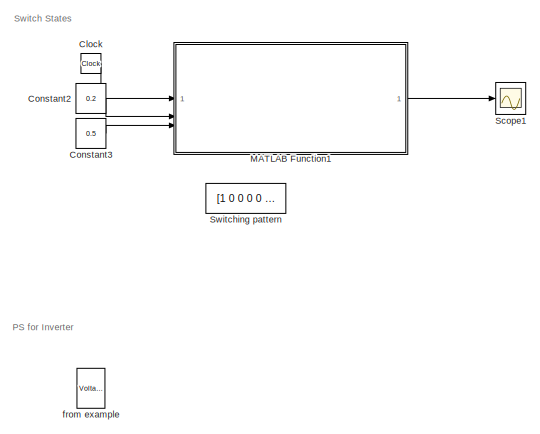
[diagram: root canvas - part 1/3, top left region]
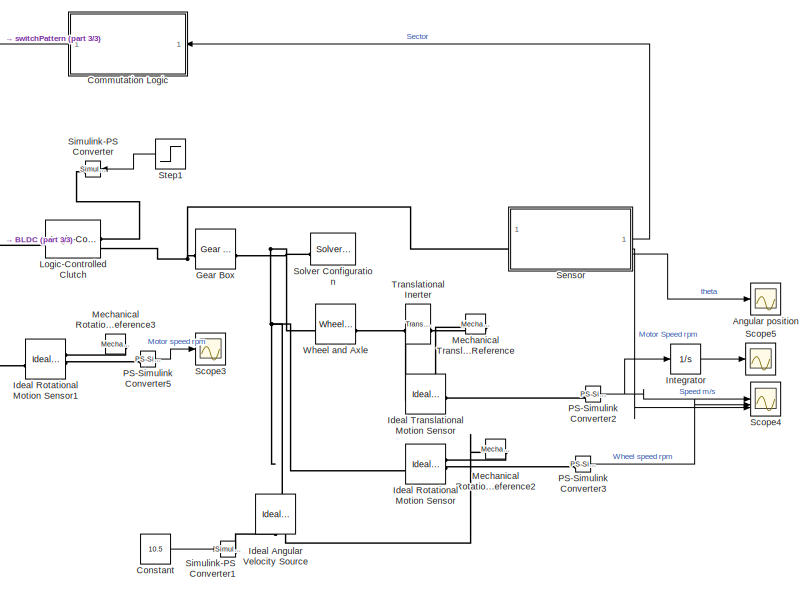
[diagram: root canvas - part 2/3, middle right region]
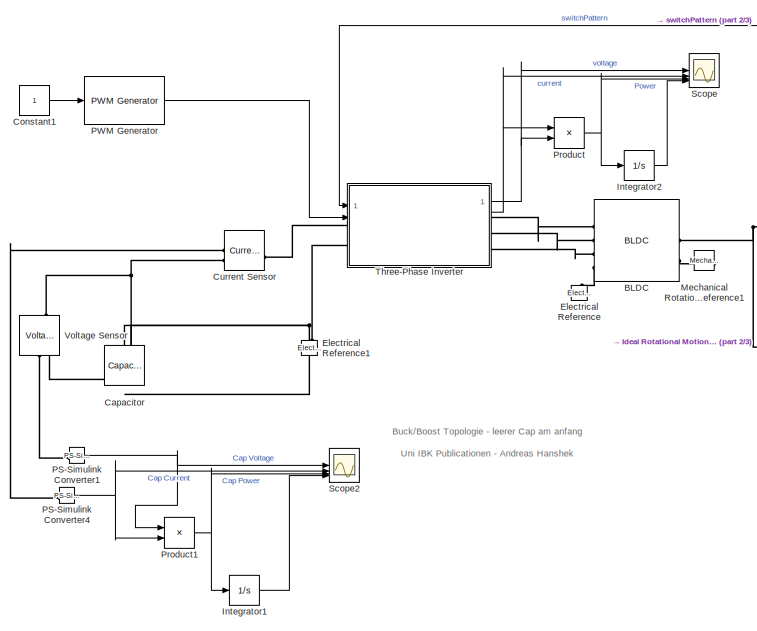
[diagram: root canvas - part 3/3, central region]
MODEL slx_5612a12646d6
KIND model
CONFIG AbsTol = auto
CONFIG EnableMultiTasking = off
CONFIG FixedStep = 2e-6
CONFIG InitFcn = warning('off','physmod:simscape:engine:core:advancer_errors:fallback_solve')
CONFIG MaxStep = auto
CONFIG MinStep = auto
CONFIG RelTol = 1e-3
CONFIG SampleTimeConstraint = Unconstrained
CONFIG SolverName = ode1
CONFIG StartTime = 0.0
CONFIG StopTime = 1.5
BLOCK [Scope] Angular position
  Floating = off
  NumInputPorts = 1
  ScopeSpecificationString = Simulink.scopes.TimeScopeBlockCfg('CurrentConfiguration', extmgr.ConfigurationSet(extmgr.Configuration('Core','General UI',true),extmgr.Configuration('Core','Source UI',true),extmgr.Configuration('Sources','WiredSimulink',true,'DataLoggingVariableName','thetaSim','DataLoggingSaveFormat','StructureWithTime'),extmgr.Configuration('Visuals','Time Domain',true,'SerializedDisplays',{struct('MinYLimReal...<+1484ch>
BLOCK [Reference] BLDC  REF=ee_lib/Electromechanical/Permanent Magnet/BLDC
  SourceBlock = ee_lib/Electromechanical/Permanent Magnet/BLDC
  SourceType = BLDC
BLOCK [Reference] Capacitor  REF=fl_lib/Electrical/Electrical Elements/Capacitor
  NameLocation = left
  SourceBlock = fl_lib/Electrical/Electrical Elements/Capacitor
  SourceType = Capacitor
BLOCK [Clock] Clock
  Commented = on
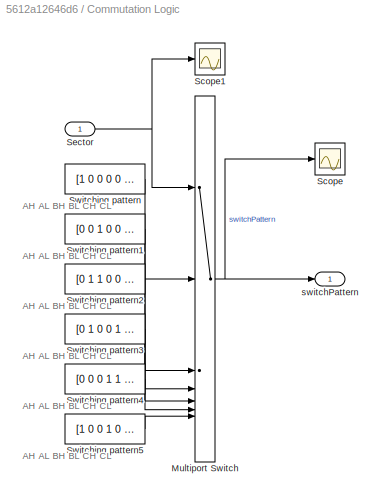
BLOCK [SubSystem] Commutation Logic
BLOCK [MultiPortSwitch] Commutation Logic/Multiport Switch
  InputSameDT = off
  Inputs = 6
  SaturateOnIntegerOverflow = off
BLOCK [Scope] Commutation Logic/Scope
  Floating = off
  NumInputPorts = 1
  ScopeSpecificationString = Simulink.scopes.TimeScopeBlockCfg('CurrentConfiguration', extmgr.ConfigurationSet(extmgr.Configuration('Core','General UI',true),extmgr.Configuration('Core','Source UI',true),extmgr.Configuration('Sources','WiredSimulink',true,'DataLoggingVariableName','switchPattern','DataLogging',true,'DataLoggingSaveFormat','StructureWithTime'),extmgr.Configuration('Visuals','Time Domain',true,'SerializedDispla...<+1570ch>
BLOCK [Scope] Commutation Logic/Scope1
  Floating = off
  NumInputPorts = 1
  ScopeSpecificationString = Simulink.scopes.TimeScopeBlockCfg('CurrentConfiguration', extmgr.ConfigurationSet(extmgr.Configuration('Core','General UI',true),extmgr.Configuration('Core','Source UI',true),extmgr.Configuration('Sources','WiredSimulink',true,'DataLoggingVariableName','ScopeData2','DataLogging',true,'DataLoggingSaveFormat','StructureWithTime'),extmgr.Configuration('Visuals','Time Domain',true,'SerializedDisplays'...<+1462ch>
BLOCK [Inport] Commutation Logic/Sector
BLOCK [Constant] Commutation Logic/Switching pattern
  Value = [1 0 0 0 0 1]
BLOCK [Constant] Commutation Logic/Switching pattern1
  Value = [0 0 1 0 0 1]
BLOCK [Constant] Commutation Logic/Switching pattern2
  Value = [0 1 1 0 0 0]
BLOCK [Constant] Commutation Logic/Switching pattern3
  Value = [0 1 0 0 1 0]
BLOCK [Constant] Commutation Logic/Switching pattern4
  Value = [0 0 0 1 1 0]
BLOCK [Constant] Commutation Logic/Switching pattern5
  Value = [1 0 0 1 0 0]
BLOCK [Outport] Commutation Logic/switchPattern
BLOCK [Constant] Constant
  Value = 10.5
BLOCK [Constant] Constant1
BLOCK [Constant] Constant2
  Commented = on
  Value = 0.2
BLOCK [Constant] Constant3
  Commented = on
  Value = 0.5
BLOCK [Reference] Current Sensor  REF=fl_lib/Electrical/Electrical Sensors/Current Sensor
  SourceBlock = fl_lib/Electrical/Electrical Sensors/Current Sensor
  SourceType = Current Sensor
BLOCK [Reference] Electrical Reference  REF=fl_lib/Electrical/Electrical Elements/Electrical Reference
  NameLocation = right
  SourceBlock = fl_lib/Electrical/Electrical Elements/Electrical Reference
  SourceType = Electrical Reference
BLOCK [Reference] Electrical Reference1  REF=fl_lib/Electrical/Electrical Elements/Electrical Reference
  NameLocation = right
  SourceBlock = fl_lib/Electrical/Electrical Elements/Electrical Reference
  SourceType = Electrical Reference
BLOCK [Reference] Gear Box  REF=fl_lib/Mechanical/Mechanisms/Gear Box
  SourceBlock = fl_lib/Mechanical/Mechanisms/Gear Box
  SourceType = Gear Box
BLOCK [Reference] Ideal Angular Velocity Source  REF=fl_lib/Mechanical/Mechanical Sources/Ideal Angular
Velocity Source
  NameLocation = right
  SourceBlock = fl_lib/Mechanical/Mechanical Sources/Ideal Angular\nVelocity Source
  SourceType = Ideal Angular\nVelocity Source
BLOCK [Reference] Ideal Rotational Motion Sensor  REF=fl_lib/Mechanical/Mechanical Sensors/Ideal Rotational
Motion Sensor
  SourceBlock = fl_lib/Mechanical/Mechanical Sensors/Ideal Rotational\nMotion Sensor
  SourceType = Ideal Rotational\nMotion Sensor
BLOCK [Reference] Ideal Rotational Motion Sensor1  REF=fl_lib/Mechanical/Mechanical Sensors/Ideal Rotational
Motion Sensor
  SourceBlock = fl_lib/Mechanical/Mechanical Sensors/Ideal Rotational\nMotion Sensor
  SourceType = Ideal Rotational\nMotion Sensor
BLOCK [Reference] Ideal Translational Motion Sensor  REF=fl_lib/Mechanical/Mechanical Sensors/Ideal Translational
Motion Sensor
  Commented = on
  SourceBlock = fl_lib/Mechanical/Mechanical Sensors/Ideal Translational\nMotion Sensor
  SourceType = Ideal Translational\nMotion Sensor
BLOCK [Integrator] Integrator
BLOCK [Integrator] Integrator1
BLOCK [Integrator] Integrator2
BLOCK [Reference] Logic-Controlled Clutch  REF=sdl_lib/Clutches/Logic-Controlled
Clutch
  SourceBlock = sdl_lib/Clutches/Logic-Controlled\nClutch
  SourceType = Logic-Controlled\nClutch
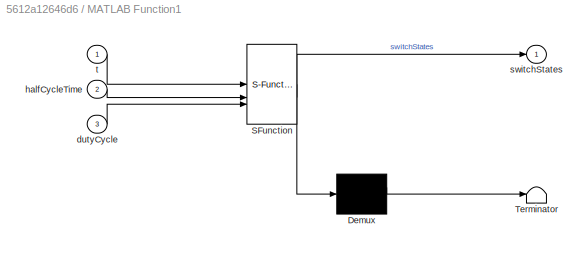
BLOCK [SubSystem] MATLAB Function1
  Commented = on
  ErrorFcn = Stateflow.Translate.translate
  PermitHierarchicalResolution = ExplicitOnly
  SFBlockType = MATLAB Function
  TreatAsAtomicUnit = on
BLOCK [Demux] MATLAB Function1/ Demux 
  Outputs = 1
BLOCK [S-Function] MATLAB Function1/ SFunction 
  EnableBusSupport = on
  FunctionName = sf_sfun
  PortCounts = [3 2]
  SFcnIsStateOwnerBlock = off
  SFunctionDeploymentMode = off
  Tag = Stateflow S-Function 1
BLOCK [Terminator] MATLAB Function1/ Terminator 
BLOCK [Inport] MATLAB Function1/dutyCycle
  Port = 3
BLOCK [Inport] MATLAB Function1/halfCycleTime
  Port = 2
BLOCK [Outport] MATLAB Function1/switchStates
BLOCK [Inport] MATLAB Function1/t
BLOCK [Reference] Mechanical Rotational Reference1  REF=fl_lib/Mechanical/Rotational Elements/Mechanical
Rotational Reference
  NameLocation = top
  SourceBlock = fl_lib/Mechanical/Rotational Elements/Mechanical\nRotational Reference
  SourceType = Mechanical\nRotational Reference
BLOCK [Reference] Mechanical Rotational Reference2  REF=fl_lib/Mechanical/Rotational Elements/Mechanical
Rotational Reference
  NameLocation = top
  SourceBlock = fl_lib/Mechanical/Rotational Elements/Mechanical\nRotational Reference
  SourceType = Mechanical\nRotational Reference
BLOCK [Reference] Mechanical Rotational Reference3  REF=fl_lib/Mechanical/Rotational Elements/Mechanical
Rotational Reference
  NameLocation = top
  SourceBlock = fl_lib/Mechanical/Rotational Elements/Mechanical\nRotational Reference
  SourceType = Mechanical\nRotational Reference
BLOCK [Reference] Mechanical Translational Reference  REF=fl_lib/Mechanical/Translational
Elements/Mechanical
Translational
Reference
  Commented = on
  NameLocation = top
  SourceBlock = fl_lib/Mechanical/Translational\nElements/Mechanical\nTranslational\nReference
  SourceType = Mechanical\nTranslational\nReference
BLOCK [Reference] PS-Simulink Converter1  REF=nesl_utility/PS-Simulink
Converter
  SourceBlock = nesl_utility/PS-Simulink\nConverter
  SourceType = PS-Simulink\nConverter
BLOCK [Reference] PS-Simulink Converter2  REF=nesl_utility/PS-Simulink
Converter
  SourceBlock = nesl_utility/PS-Simulink\nConverter
  SourceType = PS-Simulink\nConverter
BLOCK [Reference] PS-Simulink Converter3  REF=nesl_utility/PS-Simulink
Converter
  SourceBlock = nesl_utility/PS-Simulink\nConverter
  SourceType = PS-Simulink\nConverter
BLOCK [Reference] PS-Simulink Converter4  REF=nesl_utility/PS-Simulink
Converter
  SourceBlock = nesl_utility/PS-Simulink\nConverter
  SourceType = PS-Simulink\nConverter
BLOCK [Reference] PS-Simulink Converter5  REF=nesl_utility/PS-Simulink
Converter
  SourceBlock = nesl_utility/PS-Simulink\nConverter
  SourceType = PS-Simulink\nConverter
BLOCK [Reference] PWM Generator  REF=eePwmGenerator/PWM Generator
  LibrarySourceBlock = ee_sl_lib/Pulse Width\nModulation/PWM Generator
  SourceBlock = eePwmGenerator/PWM Generator
  SourceType = PWM Generator
BLOCK [Product] Product
BLOCK [Product] Product1
BLOCK [Scope] Scope
  Floating = off
  NumInputPorts = 4
  ScopeSpecificationString = Simulink.scopes.TimeScopeBlockCfg('CurrentConfiguration', extmgr.ConfigurationSet(extmgr.Configuration('Core','General UI',true),extmgr.Configuration('Core','Source UI',true),extmgr.Configuration('Sources','WiredSimulink',true,'DataLoggingVariableName','ScopeData1'),extmgr.Configuration('Visuals','Time Domain',true,'SerializedDisplays',{struct('MinYLimReal','-9.56414','MaxYLimReal','30.23803','YLa...<+3276ch>
BLOCK [Scope] Scope1
  Commented = on
  Floating = off
  NumInputPorts = 1
  ScopeSpecificationString = Simulink.scopes.TimeScopeBlockCfg('CurrentConfiguration', extmgr.ConfigurationSet(extmgr.Configuration('Core','General UI',true),extmgr.Configuration('Core','Source UI',true),extmgr.Configuration('Sources','WiredSimulink',true,'DataLoggingVariableName','ScopeData2'),extmgr.Configuration('Visuals','Time Domain',true,'SerializedDisplays',{struct('MinYLimReal','-0.125','MaxYLimReal','1.125','YLabelRe...<+1503ch>
BLOCK [Scope] Scope2
  Floating = off
  NumInputPorts = 4
  ScopeSpecificationString = Simulink.scopes.TimeScopeBlockCfg('CurrentConfiguration', extmgr.ConfigurationSet(extmgr.Configuration('Core','General UI',true),extmgr.Configuration('Core','Source UI',true),extmgr.Configuration('Sources','WiredSimulink',true,'DataLoggingVariableName','ScopeData3'),extmgr.Configuration('Visuals','Time Domain',true,'SerializedDisplays',{struct('MinYLimReal','-2.75516','MaxYLimReal','24.79644','YLa...<+3134ch>
BLOCK [Scope] Scope3
  Floating = off
  NumInputPorts = 1
  ScopeSpecificationString = Simulink.scopes.TimeScopeBlockCfg('CurrentConfiguration', extmgr.ConfigurationSet(extmgr.Configuration('Core','General UI',true),extmgr.Configuration('Core','Source UI',true),extmgr.Configuration('Sources','WiredSimulink',true,'DataLoggingVariableName','ScopeData1'),extmgr.Configuration('Visuals','Time Domain',true,'SerializedDisplays',{struct('MinYLimReal','-73.23177','MaxYLimReal','659.08589','Y...<+1430ch>
BLOCK [Scope] Scope4
  Floating = off
  NumInputPorts = 3
  ScopeSpecificationString = Simulink.scopes.TimeScopeBlockCfg('CurrentConfiguration', extmgr.ConfigurationSet(extmgr.Configuration('Core','General UI',true),extmgr.Configuration('Core','Source UI',true),extmgr.Configuration('Sources','WiredSimulink',true,'DataLoggingVariableName','ScopeData2'),extmgr.Configuration('Visuals','Time Domain',true,'SerializedDisplays',{struct('MinYLimReal','-0.99982','MaxYLimReal','8.99998','YLab...<+3184ch>
BLOCK [Scope] Scope5
  Floating = off
  NumInputPorts = 1
  ScopeSpecificationString = Simulink.scopes.TimeScopeBlockCfg('CurrentConfiguration', extmgr.ConfigurationSet(extmgr.Configuration('Core','General UI',true),extmgr.Configuration('Core','Source UI',true),extmgr.Configuration('Sources','WiredSimulink',true,'DataLoggingVariableName','ScopeData2'),extmgr.Configuration('Visuals','Time Domain',true,'SerializedDisplays',{struct('MinYLimReal','-0.66963','MaxYLimReal','6.02664','YLab...<+1369ch>
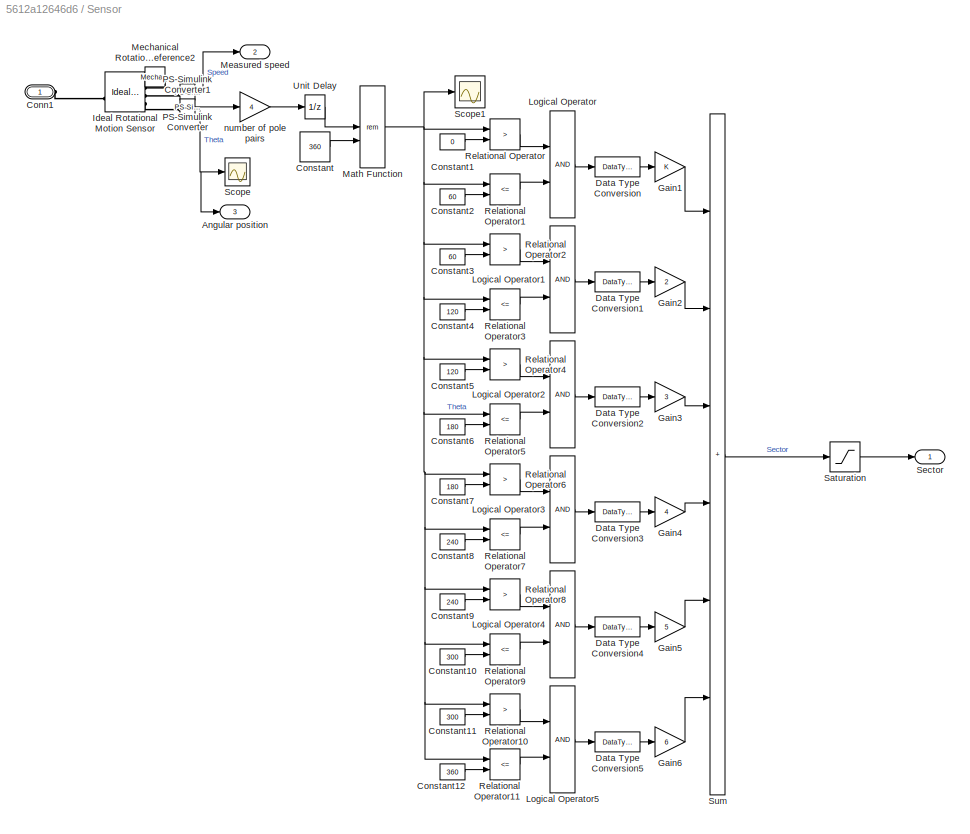
BLOCK [SubSystem] Sensor
BLOCK [Outport] Sensor/Angular position
  Port = 3
BLOCK [PMIOPort] Sensor/Conn1
  Side = Left
BLOCK [Constant] Sensor/Constant
  Value = 360
BLOCK [Constant] Sensor/Constant1
  Value = 0
BLOCK [Constant] Sensor/Constant10
  Value = 300
BLOCK [Constant] Sensor/Constant11
  Value = 300
BLOCK [Constant] Sensor/Constant12
  Value = 360
BLOCK [Constant] Sensor/Constant2
  Value = 60
BLOCK [Constant] Sensor/Constant3
  Value = 60
BLOCK [Constant] Sensor/Constant4
  Value = 120
BLOCK [Constant] Sensor/Constant5
  Value = 120
BLOCK [Constant] Sensor/Constant6
  Value = 180
BLOCK [Constant] Sensor/Constant7
  Value = 180
BLOCK [Constant] Sensor/Constant8
  Value = 240
BLOCK [Constant] Sensor/Constant9
  Value = 240
BLOCK [DataTypeConversion] Sensor/Data Type Conversion
  RndMeth = Floor
  SaturateOnIntegerOverflow = off
BLOCK [DataTypeConversion] Sensor/Data Type Conversion1
  RndMeth = Floor
  SaturateOnIntegerOverflow = off
BLOCK [DataTypeConversion] Sensor/Data Type Conversion2
  RndMeth = Floor
  SaturateOnIntegerOverflow = off
BLOCK [DataTypeConversion] Sensor/Data Type Conversion3
  RndMeth = Floor
  SaturateOnIntegerOverflow = off
BLOCK [DataTypeConversion] Sensor/Data Type Conversion4
  RndMeth = Floor
  SaturateOnIntegerOverflow = off
BLOCK [DataTypeConversion] Sensor/Data Type Conversion5
  RndMeth = Floor
  SaturateOnIntegerOverflow = off
BLOCK [Gain] Sensor/Gain1
BLOCK [Gain] Sensor/Gain2
  Gain = 2
BLOCK [Gain] Sensor/Gain3
  Gain = 3
BLOCK [Gain] Sensor/Gain4
  Gain = 4
BLOCK [Gain] Sensor/Gain5
  Gain = 5
BLOCK [Gain] Sensor/Gain6
  Gain = 6
BLOCK [Reference] Sensor/Ideal Rotational Motion Sensor  REF=fl_lib/Mechanical/Mechanical Sensors/Ideal Rotational
Motion Sensor
  SourceBlock = fl_lib/Mechanical/Mechanical Sensors/Ideal Rotational\nMotion Sensor
  SourceType = Ideal Rotational\nMotion Sensor
BLOCK [Logic] Sensor/Logical Operator
  AllPortsSameDT = off
  OutDataTypeStr = boolean
BLOCK [Logic] Sensor/Logical Operator1
  AllPortsSameDT = off
  OutDataTypeStr = boolean
BLOCK [Logic] Sensor/Logical Operator2
  AllPortsSameDT = off
  OutDataTypeStr = boolean
BLOCK [Logic] Sensor/Logical Operator3
  AllPortsSameDT = off
  OutDataTypeStr = boolean
BLOCK [Logic] Sensor/Logical Operator4
  AllPortsSameDT = off
  OutDataTypeStr = boolean
BLOCK [Logic] Sensor/Logical Operator5
  AllPortsSameDT = off
  OutDataTypeStr = boolean
BLOCK [Math] Sensor/Math Function
  Operator = rem
BLOCK [Outport] Sensor/Measured speed
  Port = 2
BLOCK [Reference] Sensor/Mechanical Rotational Reference2  REF=fl_lib/Mechanical/Rotational Elements/Mechanical
Rotational Reference
  NameLocation = top
  SourceBlock = fl_lib/Mechanical/Rotational Elements/Mechanical\nRotational Reference
  SourceType = Mechanical\nRotational Reference
BLOCK [Reference] Sensor/PS-Simulink Converter  REF=nesl_utility/PS-Simulink
Converter
  SourceBlock = nesl_utility/PS-Simulink\nConverter
  SourceType = PS-Simulink\nConverter
BLOCK [Reference] Sensor/PS-Simulink Converter1  REF=nesl_utility/PS-Simulink
Converter
  SourceBlock = nesl_utility/PS-Simulink\nConverter
  SourceType = PS-Simulink\nConverter
BLOCK [RelationalOperator] Sensor/Relational Operator
  InputSameDT = off
  Operator = >
  OutDataTypeStr = boolean
  RndMeth = Simplest
BLOCK [RelationalOperator] Sensor/Relational Operator1
  InputSameDT = off
  Operator = <=
  OutDataTypeStr = boolean
  RndMeth = Simplest
BLOCK [RelationalOperator] Sensor/Relational Operator10
  InputSameDT = off
  Operator = >
  OutDataTypeStr = boolean
  RndMeth = Simplest
BLOCK [RelationalOperator] Sensor/Relational Operator11
  InputSameDT = off
  Operator = <=
  OutDataTypeStr = boolean
  RndMeth = Simplest
BLOCK [RelationalOperator] Sensor/Relational Operator2
  InputSameDT = off
  Operator = >
  OutDataTypeStr = boolean
  RndMeth = Simplest
BLOCK [RelationalOperator] Sensor/Relational Operator3
  InputSameDT = off
  Operator = <=
  OutDataTypeStr = boolean
  RndMeth = Simplest
BLOCK [RelationalOperator] Sensor/Relational Operator4
  InputSameDT = off
  Operator = >
  OutDataTypeStr = boolean
  RndMeth = Simplest
BLOCK [RelationalOperator] Sensor/Relational Operator5
  InputSameDT = off
  Operator = <=
  OutDataTypeStr = boolean
  RndMeth = Simplest
BLOCK [RelationalOperator] Sensor/Relational Operator6
  InputSameDT = off
  Operator = >
  OutDataTypeStr = boolean
  RndMeth = Simplest
BLOCK [RelationalOperator] Sensor/Relational Operator7
  InputSameDT = off
  Operator = <=
  OutDataTypeStr = boolean
  RndMeth = Simplest
BLOCK [RelationalOperator] Sensor/Relational Operator8
  InputSameDT = off
  Operator = >
  OutDataTypeStr = boolean
  RndMeth = Simplest
BLOCK [RelationalOperator] Sensor/Relational Operator9
  InputSameDT = off
  Operator = <=
  OutDataTypeStr = boolean
  RndMeth = Simplest
BLOCK [Saturate] Sensor/Saturation
  LowerLimit = 1
  UpperLimit = 6
BLOCK [Scope] Sensor/Scope
  Floating = off
  NumInputPorts = 1
  ScopeSpecificationString = Simulink.scopes.TimeScopeBlockCfg('CurrentConfiguration', extmgr.ConfigurationSet(extmgr.Configuration('Core','General UI',true),extmgr.Configuration('Core','Source UI',true),extmgr.Configuration('Sources','WiredSimulink',true,'DataLoggingVariableName','thetaSim','DataLogging',true,'DataLoggingSaveFormat','StructureWithTime'),extmgr.Configuration('Visuals','Time Domain',true,'SerializedDisplays',{...<+1468ch>
BLOCK [Scope] Sensor/Scope1
  Floating = off
  NumInputPorts = 1
  ScopeSpecificationString = Simulink.scopes.TimeScopeBlockCfg('CurrentConfiguration', extmgr.ConfigurationSet(extmgr.Configuration('Core','General UI',true),extmgr.Configuration('Core','Source UI',true),extmgr.Configuration('Sources','WiredSimulink',true,'DataLoggingVariableName','ScopeData1'),extmgr.Configuration('Visuals','Time Domain',true,'SerializedDisplays',{struct('MinYLimReal','-44.99999','MaxYLimReal','404.99993','Y...<+1412ch>
BLOCK [Outport] Sensor/Sector
BLOCK [Sum] Sensor/Sum
  IconShape = rectangular
  Inputs = ++++++
BLOCK [UnitDelay] Sensor/Unit Delay
  HasFrameUpgradeWarning = on
  SampleTime = 2e-5
BLOCK [Gain] Sensor/number of pole pairs
  Gain = 4
BLOCK [Reference] Simulink-PS Converter  REF=nesl_utility/Simulink-PS
Converter
  SourceBlock = nesl_utility/Simulink-PS\nConverter
  SourceType = Simulink-PS\nConverter
BLOCK [Reference] Simulink-PS Converter1  REF=nesl_utility/Simulink-PS
Converter
  SourceBlock = nesl_utility/Simulink-PS\nConverter
  SourceType = Simulink-PS\nConverter
BLOCK [Reference] Solver Configuration  REF=nesl_utility/Solver
Configuration
  SourceBlock = nesl_utility/Solver\nConfiguration
  SourceType = Solver\nConfiguration
BLOCK [Step] Step1
  SampleTime = 0
  Time = 0.1
BLOCK [Constant] Switching pattern
  Commented = on
  Value = [1 0 0 0 0 1]
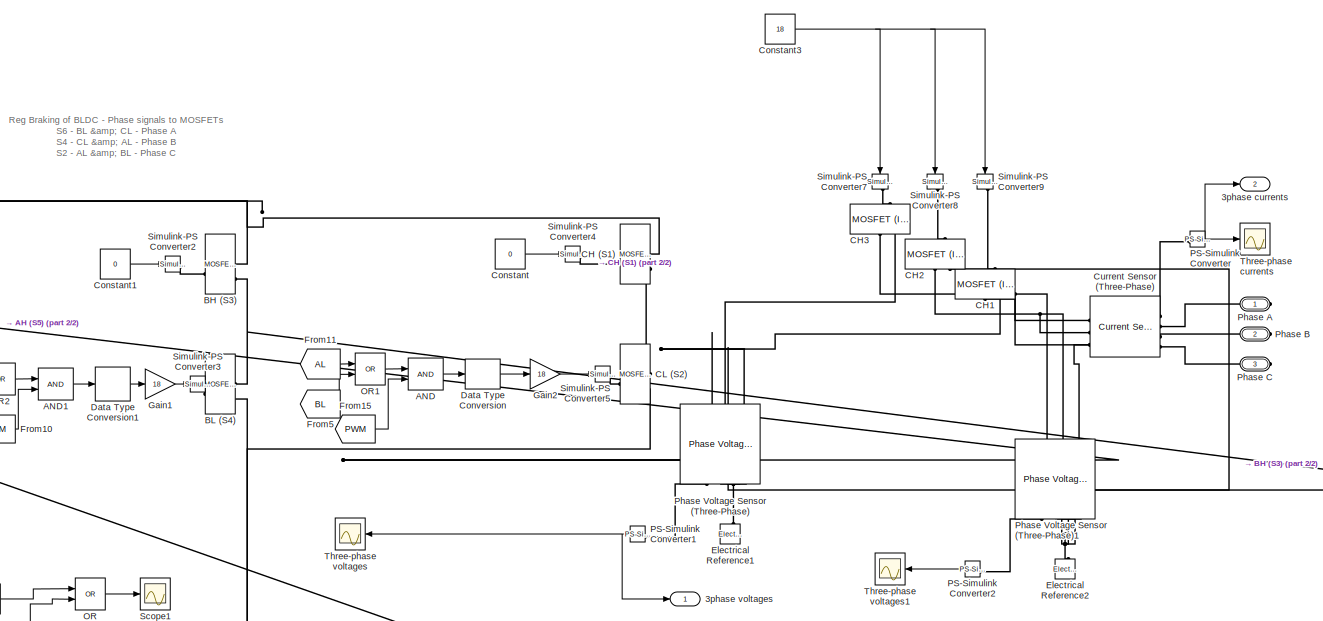
[diagram: Three-Phase Inverter - part 1/2, center side, full height]
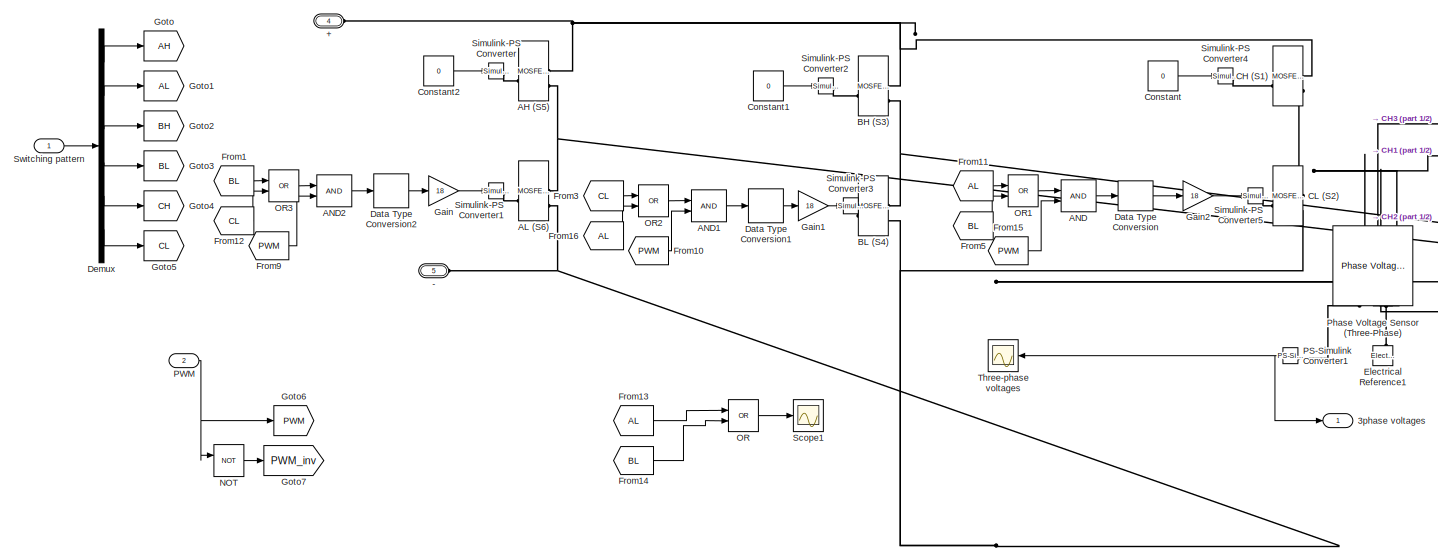
[diagram: Three-Phase Inverter - part 2/2, central region]
BLOCK [SubSystem] Three-Phase Inverter
BLOCK [PMIOPort] Three-Phase Inverter/+
  Port = 4
  Side = Left
BLOCK [PMIOPort] Three-Phase Inverter/-
  Port = 5
  Side = Left
BLOCK [Outport] Three-Phase Inverter/3phase currents
  Port = 2
BLOCK [Outport] Three-Phase Inverter/3phase voltages
BLOCK [Reference] Three-Phase Inverter/AH (S5)  REF=ee_lib/Semiconductors &
Converters/MOSFET
(Ideal,
Switching)
  AttributesFormatString = Infineon:IMZA120R007M1H
  SourceBlock = ee_lib/Semiconductors &\nConverters/MOSFET\n(Ideal,\nSwitching)
  SourceType = MOSFET\n(Ideal,\nSwitching)
  Tag = {'toolbox/physmod/elec/library/m/ee_lib_parts';'Semiconductors_and_Converters/MOSFET__Ideal__Switching_/Infineon/IMZA120R007M1H.xml'}
BLOCK [Reference] Three-Phase Inverter/AL (S6)  REF=ee_lib/Semiconductors &
Converters/MOSFET
(Ideal,
Switching)
  AttributesFormatString = Infineon:IMZA120R007M1H
  SourceBlock = ee_lib/Semiconductors &\nConverters/MOSFET\n(Ideal,\nSwitching)
  SourceType = MOSFET\n(Ideal,\nSwitching)
  Tag = {'toolbox/physmod/elec/library/m/ee_lib_parts';'Semiconductors_and_Converters/MOSFET__Ideal__Switching_/Infineon/IMZA120R007M1H.xml'}
BLOCK [Logic] Three-Phase Inverter/AND
  AllPortsSameDT = off
  IconShape = distinctive
  OutDataTypeStr = boolean
BLOCK [Logic] Three-Phase Inverter/AND1
  AllPortsSameDT = off
  IconShape = distinctive
  OutDataTypeStr = boolean
BLOCK [Logic] Three-Phase Inverter/AND2
  AllPortsSameDT = off
  IconShape = distinctive
  OutDataTypeStr = boolean
BLOCK [Reference] Three-Phase Inverter/BH (S3)  REF=ee_lib/Semiconductors &
Converters/MOSFET
(Ideal,
Switching)
  AttributesFormatString = Infineon:IMZA120R007M1H
  SourceBlock = ee_lib/Semiconductors &\nConverters/MOSFET\n(Ideal,\nSwitching)
  SourceType = MOSFET\n(Ideal,\nSwitching)
  Tag = {'toolbox/physmod/elec/library/m/ee_lib_parts';'Semiconductors_and_Converters/MOSFET__Ideal__Switching_/Infineon/IMZA120R007M1H.xml'}
BLOCK [Reference] Three-Phase Inverter/BL (S4)  REF=ee_lib/Semiconductors &
Converters/MOSFET
(Ideal,
Switching)
  AttributesFormatString = Infineon:IMZA120R007M1H
  SourceBlock = ee_lib/Semiconductors &\nConverters/MOSFET\n(Ideal,\nSwitching)
  SourceType = MOSFET\n(Ideal,\nSwitching)
  Tag = {'toolbox/physmod/elec/library/m/ee_lib_parts';'Semiconductors_and_Converters/MOSFET__Ideal__Switching_/Infineon/IMZA120R007M1H.xml'}
BLOCK [Reference] Three-Phase Inverter/CH (S1)  REF=ee_lib/Semiconductors &
Converters/MOSFET
(Ideal,
Switching)
  AttributesFormatString = Infineon:IMZA120R007M1H
  SourceBlock = ee_lib/Semiconductors &\nConverters/MOSFET\n(Ideal,\nSwitching)
  SourceType = MOSFET\n(Ideal,\nSwitching)
  Tag = {'toolbox/physmod/elec/library/m/ee_lib_parts';'Semiconductors_and_Converters/MOSFET__Ideal__Switching_/Infineon/IMZA120R007M1H.xml'}
BLOCK [Reference] Three-Phase Inverter/CH1  REF=ee_lib/Semiconductors &
Converters/MOSFET
(Ideal,
Switching)
  AttributesFormatString = Infineon:IMZA120R007M1H
  NameLocation = left
  SourceBlock = ee_lib/Semiconductors &\nConverters/MOSFET\n(Ideal,\nSwitching)
  SourceType = MOSFET\n(Ideal,\nSwitching)
  Tag = {'toolbox/physmod/elec/library/m/ee_lib_parts';'Semiconductors_and_Converters/MOSFET__Ideal__Switching_/Infineon/IMZA120R007M1H.xml'}
BLOCK [Reference] Three-Phase Inverter/CH2  REF=ee_lib/Semiconductors &
Converters/MOSFET
(Ideal,
Switching)
  AttributesFormatString = Infineon:IMZA120R007M1H
  NameLocation = left
  SourceBlock = ee_lib/Semiconductors &\nConverters/MOSFET\n(Ideal,\nSwitching)
  SourceType = MOSFET\n(Ideal,\nSwitching)
  Tag = {'toolbox/physmod/elec/library/m/ee_lib_parts';'Semiconductors_and_Converters/MOSFET__Ideal__Switching_/Infineon/IMZA120R007M1H.xml'}
BLOCK [Reference] Three-Phase Inverter/CH3  REF=ee_lib/Semiconductors &
Converters/MOSFET
(Ideal,
Switching)
  AttributesFormatString = Infineon:IMZA120R007M1H
  NameLocation = left
  SourceBlock = ee_lib/Semiconductors &\nConverters/MOSFET\n(Ideal,\nSwitching)
  SourceType = MOSFET\n(Ideal,\nSwitching)
  Tag = {'toolbox/physmod/elec/library/m/ee_lib_parts';'Semiconductors_and_Converters/MOSFET__Ideal__Switching_/Infineon/IMZA120R007M1H.xml'}
BLOCK [Reference] Three-Phase Inverter/CL (S2)  REF=ee_lib/Semiconductors &
Converters/MOSFET
(Ideal,
Switching)
  AttributesFormatString = Infineon:IMZA120R007M1H
  SourceBlock = ee_lib/Semiconductors &\nConverters/MOSFET\n(Ideal,\nSwitching)
  SourceType = MOSFET\n(Ideal,\nSwitching)
  Tag = {'toolbox/physmod/elec/library/m/ee_lib_parts';'Semiconductors_and_Converters/MOSFET__Ideal__Switching_/Infineon/IMZA120R007M1H.xml'}
BLOCK [Constant] Three-Phase Inverter/Constant
  Value = 0
BLOCK [Constant] Three-Phase Inverter/Constant1
  Value = 0
BLOCK [Constant] Three-Phase Inverter/Constant2
  Value = 0
BLOCK [Constant] Three-Phase Inverter/Constant3
  Value = 18
BLOCK [Reference] Three-Phase Inverter/Current Sensor (Three-Phase)  REF=ee_lib/Sensors &
Transducers/Current Sensor
(Three-Phase)
  SourceBlock = ee_lib/Sensors &\nTransducers/Current Sensor\n(Three-Phase)
  SourceType = Current Sensor\n(Three-Phase)
BLOCK [DataTypeConversion] Three-Phase Inverter/Data Type Conversion
  RndMeth = Floor
  SaturateOnIntegerOverflow = off
BLOCK [DataTypeConversion] Three-Phase Inverter/Data Type Conversion1
  RndMeth = Floor
  SaturateOnIntegerOverflow = off
BLOCK [DataTypeConversion] Three-Phase Inverter/Data Type Conversion2
  RndMeth = Floor
  SaturateOnIntegerOverflow = off
BLOCK [Demux] Three-Phase Inverter/Demux
  Outputs = 6
BLOCK [Reference] Three-Phase Inverter/Electrical Reference1  REF=fl_lib/Electrical/Electrical Elements/Electrical Reference
  NameLocation = right
  SourceBlock = fl_lib/Electrical/Electrical Elements/Electrical Reference
  SourceType = Electrical Reference
BLOCK [Reference] Three-Phase Inverter/Electrical Reference2  REF=fl_lib/Electrical/Electrical Elements/Electrical Reference
  NameLocation = right
  SourceBlock = fl_lib/Electrical/Electrical Elements/Electrical Reference
  SourceType = Electrical Reference
BLOCK [From] Three-Phase Inverter/From1
  GotoTag = BL
BLOCK [From] Three-Phase Inverter/From10
  GotoTag = PWM
BLOCK [From] Three-Phase Inverter/From11
  GotoTag = AL
BLOCK [From] Three-Phase Inverter/From12
  GotoTag = CL
BLOCK [From] Three-Phase Inverter/From13
  GotoTag = AL
BLOCK [From] Three-Phase Inverter/From14
  GotoTag = BL
BLOCK [From] Three-Phase Inverter/From15
  GotoTag = PWM
BLOCK [From] Three-Phase Inverter/From16
  GotoTag = AL
BLOCK [From] Three-Phase Inverter/From3
  GotoTag = CL
BLOCK [From] Three-Phase Inverter/From5
  GotoTag = BL
BLOCK [From] Three-Phase Inverter/From9
  GotoTag = PWM
BLOCK [Gain] Three-Phase Inverter/Gain
  Gain = 18
BLOCK [Gain] Three-Phase Inverter/Gain1
  Gain = 18
BLOCK [Gain] Three-Phase Inverter/Gain2
  Gain = 18
BLOCK [Goto] Three-Phase Inverter/Goto
  GotoTag = AH
BLOCK [Goto] Three-Phase Inverter/Goto1
  GotoTag = AL
BLOCK [Goto] Three-Phase Inverter/Goto2
  GotoTag = BH
BLOCK [Goto] Three-Phase Inverter/Goto3
  GotoTag = BL
BLOCK [Goto] Three-Phase Inverter/Goto4
  GotoTag = CH
BLOCK [Goto] Three-Phase Inverter/Goto5
  GotoTag = CL
BLOCK [Goto] Three-Phase Inverter/Goto6
  GotoTag = PWM
BLOCK [Goto] Three-Phase Inverter/Goto7
  GotoTag = PWM_inv
BLOCK [Logic] Three-Phase Inverter/NOT
  AllPortsSameDT = off
  IconShape = distinctive
  Operator = NOT
  OutDataTypeStr = boolean
BLOCK [Logic] Three-Phase Inverter/OR
  AllPortsSameDT = off
  IconShape = distinctive
  Operator = OR
  OutDataTypeStr = boolean
BLOCK [Logic] Three-Phase Inverter/OR1
  AllPortsSameDT = off
  IconShape = distinctive
  Operator = OR
  OutDataTypeStr = boolean
BLOCK [Logic] Three-Phase Inverter/OR2
  AllPortsSameDT = off
  IconShape = distinctive
  Operator = OR
  OutDataTypeStr = boolean
BLOCK [Logic] Three-Phase Inverter/OR3
  AllPortsSameDT = off
  IconShape = distinctive
  Operator = OR
  OutDataTypeStr = boolean
BLOCK [Reference] Three-Phase Inverter/PS-Simulink Converter  REF=nesl_utility/PS-Simulink
Converter
  SourceBlock = nesl_utility/PS-Simulink\nConverter
  SourceType = PS-Simulink\nConverter
BLOCK [Reference] Three-Phase Inverter/PS-Simulink Converter1  REF=nesl_utility/PS-Simulink
Converter
  NameLocation = top
  SourceBlock = nesl_utility/PS-Simulink\nConverter
  SourceType = PS-Simulink\nConverter
BLOCK [Reference] Three-Phase Inverter/PS-Simulink Converter2  REF=nesl_utility/PS-Simulink
Converter
  NameLocation = top
  SourceBlock = nesl_utility/PS-Simulink\nConverter
  SourceType = PS-Simulink\nConverter
BLOCK [Inport] Three-Phase Inverter/PWM
  Port = 2
BLOCK [PMIOPort] Three-Phase Inverter/Phase A
  Side = Right
BLOCK [PMIOPort] Three-Phase Inverter/Phase B
  Port = 2
  Side = Right
BLOCK [PMIOPort] Three-Phase Inverter/Phase C
  Port = 3
  Side = Right
BLOCK [Reference] Three-Phase Inverter/Phase Voltage Sensor (Three-Phase)  REF=ee_lib/Sensors &
Transducers/Phase Voltage Sensor
(Three-Phase)
  NameLocation = right
  SourceBlock = ee_lib/Sensors &\nTransducers/Phase Voltage Sensor\n(Three-Phase)
  SourceType = Phase Voltage Sensor\n(Three-Phase)
BLOCK [Reference] Three-Phase Inverter/Phase Voltage Sensor (Three-Phase)1  REF=ee_lib/Sensors &
Transducers/Phase Voltage Sensor
(Three-Phase)
  NameLocation = right
  SourceBlock = ee_lib/Sensors &\nTransducers/Phase Voltage Sensor\n(Three-Phase)
  SourceType = Phase Voltage Sensor\n(Three-Phase)
BLOCK [Scope] Three-Phase Inverter/Scope1
  Floating = off
  NumInputPorts = 1
  ScopeSpecificationString = Simulink.scopes.TimeScopeBlockCfg('CurrentConfiguration', extmgr.ConfigurationSet(extmgr.Configuration('Core','General UI',true),extmgr.Configuration('Core','Source UI',true),extmgr.Configuration('Sources','WiredSimulink',true,'DataLoggingVariableName','ScopeData5'),extmgr.Configuration('Visuals','Time Domain',true,'SerializedDisplays',{struct('MinYLimReal','-0.125','MaxYLimReal','1.125','YLabelRe...<+1349ch>
BLOCK [Reference] Three-Phase Inverter/Simulink-PS Converter  REF=nesl_utility/Simulink-PS
Converter
  SourceBlock = nesl_utility/Simulink-PS\nConverter
  SourceType = Simulink-PS\nConverter
BLOCK [Reference] Three-Phase Inverter/Simulink-PS Converter1  REF=nesl_utility/Simulink-PS
Converter
  SourceBlock = nesl_utility/Simulink-PS\nConverter
  SourceType = Simulink-PS\nConverter
BLOCK [Reference] Three-Phase Inverter/Simulink-PS Converter2  REF=nesl_utility/Simulink-PS
Converter
  SourceBlock = nesl_utility/Simulink-PS\nConverter
  SourceType = Simulink-PS\nConverter
BLOCK [Reference] Three-Phase Inverter/Simulink-PS Converter3  REF=nesl_utility/Simulink-PS
Converter
  SourceBlock = nesl_utility/Simulink-PS\nConverter
  SourceType = Simulink-PS\nConverter
BLOCK [Reference] Three-Phase Inverter/Simulink-PS Converter4  REF=nesl_utility/Simulink-PS
Converter
  SourceBlock = nesl_utility/Simulink-PS\nConverter
  SourceType = Simulink-PS\nConverter
BLOCK [Reference] Three-Phase Inverter/Simulink-PS Converter5  REF=nesl_utility/Simulink-PS
Converter
  SourceBlock = nesl_utility/Simulink-PS\nConverter
  SourceType = Simulink-PS\nConverter
BLOCK [Reference] Three-Phase Inverter/Simulink-PS Converter7  REF=nesl_utility/Simulink-PS
Converter
  NameLocation = left
  SourceBlock = nesl_utility/Simulink-PS\nConverter
  SourceType = Simulink-PS\nConverter
BLOCK [Reference] Three-Phase Inverter/Simulink-PS Converter8  REF=nesl_utility/Simulink-PS
Converter
  NameLocation = left
  SourceBlock = nesl_utility/Simulink-PS\nConverter
  SourceType = Simulink-PS\nConverter
BLOCK [Reference] Three-Phase Inverter/Simulink-PS Converter9  REF=nesl_utility/Simulink-PS
Converter
  NameLocation = left
  SourceBlock = nesl_utility/Simulink-PS\nConverter
  SourceType = Simulink-PS\nConverter
BLOCK [Inport] Three-Phase Inverter/Switching pattern
BLOCK [Scope] Three-Phase Inverter/Three-phase currents
  Floating = off
  NumInputPorts = 1
  ScopeSpecificationString = Simulink.scopes.TimeScopeBlockCfg('CurrentConfiguration', extmgr.ConfigurationSet(extmgr.Configuration('Core','General UI',true),extmgr.Configuration('Core','Source UI',true),extmgr.Configuration('Sources','WiredSimulink',true),extmgr.Configuration('Visuals','Time Domain',true,'SerializedDisplays',{struct('MinYLimReal','-327.22693','MaxYLimReal','356.24596','YLabelReal','','MinYLimMag',' 0.00000',...<+1439ch>
BLOCK [Scope] Three-Phase Inverter/Three-phase voltages
  Floating = off
  NumInputPorts = 1
  ScopeSpecificationString = Simulink.scopes.TimeScopeBlockCfg('CurrentConfiguration', extmgr.ConfigurationSet(extmgr.Configuration('Core','General UI',true),extmgr.Configuration('Core','Source UI',true),extmgr.Configuration('Sources','WiredSimulink',true,'DataLoggingVariableName','ScopeData1'),extmgr.Configuration('Visuals','Time Domain',true,'SerializedDisplays',{struct('MinYLimReal','-6.1341','MaxYLimReal','29.29602','YLab...<+1464ch>
BLOCK [Scope] Three-Phase Inverter/Three-phase voltages1
  Floating = off
  NumInputPorts = 1
  ScopeSpecificationString = Simulink.scopes.TimeScopeBlockCfg('CurrentConfiguration', extmgr.ConfigurationSet(extmgr.Configuration('Core','General UI',true),extmgr.Configuration('Core','Source UI',true),extmgr.Configuration('Sources','WiredSimulink',true,'DataLoggingVariableName','ScopeData2'),extmgr.Configuration('Visuals','Time Domain',true,'SerializedDisplays',{struct('MinYLimReal','-9.33914','MaxYLimReal','32.23051','YLa...<+1502ch>
BLOCK [Reference] Translational Inerter  REF=fl_lib/Mechanical/Translational
Elements/Translational
Inerter
  Commented = on
  SourceBlock = fl_lib/Mechanical/Translational\nElements/Translational\nInerter
  SourceType = Translational\nInerter
BLOCK [Reference] Voltage Sensor  REF=fl_lib/Electrical/Electrical Sensors/Voltage Sensor
  NameLocation = right
  SourceBlock = fl_lib/Electrical/Electrical Sensors/Voltage Sensor
  SourceType = Voltage Sensor
BLOCK [Reference] Wheel and Axle  REF=fl_lib/Mechanical/Mechanisms/Wheel and Axle
  Commented = on
  SourceBlock = fl_lib/Mechanical/Mechanisms/Wheel and Axle
  SourceType = Wheel and Axle
BLOCK [Reference] from example  REF=ee_lib/Sources/Voltage Source
  Commented = on
  NameLocation = right
  SourceBlock = ee_lib/Sources/Voltage Source
  SourceType = Voltage Source
ANNOTATION (root): Buck/Boost Topologie - leerer Cap am anfang Uni IBK Publicationen - Andreas Hanshek
ANNOTATION (root): PS for Inverter
ANNOTATION (root): Switch States
ANNOTATION Commutation Logic: AH AL BH BL CH CL
ANNOTATION Three-Phase Inverter: Reg Braking of BLDC - Phase signals to MOSFETs S6 - BL & CL - Phase A S4 - CL & AL - Phase B S2 - AL & BL - Phase C
LINE Clock:1 -> MATLAB Function1:1
NET Commutation Logic/Multiport Switch:1 -> Commutation Logic/Scope:1, Commutation Logic/switchPattern:1
NET Commutation Logic/Sector:1 -> Commutation Logic/Multiport Switch:1, Commutation Logic/Scope1:1
LINE Commutation Logic/Switching pattern1:1 -> Commutation Logic/Multiport Switch:3
LINE Commutation Logic/Switching pattern2:1 -> Commutation Logic/Multiport Switch:4
LINE Commutation Logic/Switching pattern3:1 -> Commutation Logic/Multiport Switch:5
LINE Commutation Logic/Switching pattern4:1 -> Commutation Logic/Multiport Switch:6
LINE Commutation Logic/Switching pattern5:1 -> Commutation Logic/Multiport Switch:7
LINE Commutation Logic/Switching pattern:1 -> Commutation Logic/Multiport Switch:2
LINE Commutation Logic:1 -> Three-Phase Inverter:1
LINE Constant1:1 -> PWM Generator:1
LINE Constant2:1 -> MATLAB Function1:2
LINE Constant3:1 -> MATLAB Function1:3
LINE Constant:1 -> Simulink-PS Converter1:1
LINE Integrator1:1 -> Scope2:4
LINE Integrator2:1 -> Scope:4
LINE Integrator:1 -> Scope5:1
LINE MATLAB Function1:1 -> Scope1:1
NET PS-Simulink Converter1:1 -> Product1:1, Scope2:1
NET PS-Simulink Converter2:1 -> Integrator:1, Scope4:1
LINE PS-Simulink Converter3:1 -> Scope4:2
NET PS-Simulink Converter4:1 -> Product1:2, Scope2:2
LINE PS-Simulink Converter5:1 -> Scope3:1
LINE PWM Generator:1 -> Three-Phase Inverter:2
NET Product1:1 -> Integrator1:1, Scope2:3
NET Product:1 -> Integrator2:1, Scope:3
LINE Sensor/Constant10:1 -> Sensor/Relational Operator9:2
LINE Sensor/Constant11:1 -> Sensor/Relational Operator10:2
LINE Sensor/Constant12:1 -> Sensor/Relational Operator11:2
LINE Sensor/Constant1:1 -> Sensor/Relational Operator:2
LINE Sensor/Constant2:1 -> Sensor/Relational Operator1:2
LINE Sensor/Constant3:1 -> Sensor/Relational Operator2:2
LINE Sensor/Constant4:1 -> Sensor/Relational Operator3:2
LINE Sensor/Constant5:1 -> Sensor/Relational Operator4:2
LINE Sensor/Constant6:1 -> Sensor/Relational Operator5:2
LINE Sensor/Constant7:1 -> Sensor/Relational Operator6:2
LINE Sensor/Constant8:1 -> Sensor/Relational Operator7:2
LINE Sensor/Constant9:1 -> Sensor/Relational Operator8:2
LINE Sensor/Constant:1 -> Sensor/Math Function:2
LINE Sensor/Data Type Conversion1:1 -> Sensor/Gain2:1
LINE Sensor/Data Type Conversion2:1 -> Sensor/Gain3:1
LINE Sensor/Data Type Conversion3:1 -> Sensor/Gain4:1
LINE Sensor/Data Type Conversion4:1 -> Sensor/Gain5:1
LINE Sensor/Data Type Conversion5:1 -> Sensor/Gain6:1
LINE Sensor/Data Type Conversion:1 -> Sensor/Gain1:1
LINE Sensor/Gain1:1 -> Sensor/Sum:1
LINE Sensor/Gain2:1 -> Sensor/Sum:2
LINE Sensor/Gain3:1 -> Sensor/Sum:3
LINE Sensor/Gain4:1 -> Sensor/Sum:4
LINE Sensor/Gain5:1 -> Sensor/Sum:5
LINE Sensor/Gain6:1 -> Sensor/Sum:6
LINE Sensor/Logical Operator1:1 -> Sensor/Data Type Conversion1:1
LINE Sensor/Logical Operator2:1 -> Sensor/Data Type Conversion2:1
LINE Sensor/Logical Operator3:1 -> Sensor/Data Type Conversion3:1
LINE Sensor/Logical Operator4:1 -> Sensor/Data Type Conversion4:1
LINE Sensor/Logical Operator5:1 -> Sensor/Data Type Conversion5:1
LINE Sensor/Logical Operator:1 -> Sensor/Data Type Conversion:1
NET Sensor/Math Function:1 -> Sensor/Relational Operator10:1, Sensor/Relational Operator11:1, Sensor/Relational Operator1:1, Sensor/Relational Operator2:1, Sensor/Relational Operator3:1, Sensor/Relational Operator4:1, Sensor/Relational Operator5:1, Sensor/Relational Operator6:1, Sensor/Relational Operator7:1, Sensor/Relational Operator8:1, Sensor/Relational Operator9:1, Sensor/Relational Operator:1, Sensor/Scope1:1
NET Sensor/PS-Simulink Converter1:1 -> Sensor/Angular position:1, Sensor/Scope:1, Sensor/number of pole pairs:1
LINE Sensor/PS-Simulink Converter:1 -> Sensor/Measured speed:1
LINE Sensor/Relational Operator10:1 -> Sensor/Logical Operator5:1
LINE Sensor/Relational Operator11:1 -> Sensor/Logical Operator5:2
LINE Sensor/Relational Operator1:1 -> Sensor/Logical Operator:2
LINE Sensor/Relational Operator2:1 -> Sensor/Logical Operator1:1
LINE Sensor/Relational Operator3:1 -> Sensor/Logical Operator1:2
LINE Sensor/Relational Operator4:1 -> Sensor/Logical Operator2:1
LINE Sensor/Relational Operator5:1 -> Sensor/Logical Operator2:2
LINE Sensor/Relational Operator6:1 -> Sensor/Logical Operator3:1
LINE Sensor/Relational Operator7:1 -> Sensor/Logical Operator3:2
LINE Sensor/Relational Operator8:1 -> Sensor/Logical Operator4:1
LINE Sensor/Relational Operator9:1 -> Sensor/Logical Operator4:2
LINE Sensor/Relational Operator:1 -> Sensor/Logical Operator:1
LINE Sensor/Saturation:1 -> Sensor/Sector:1
LINE Sensor/Sum:1 -> Sensor/Saturation:1
LINE Sensor/Unit Delay:1 -> Sensor/Math Function:1
LINE Sensor/number of pole pairs:1 -> Sensor/Unit Delay:1
LINE Sensor:1 -> Commutation Logic:1
LINE Sensor:2 -> Scope4:3
LINE Sensor:3 -> Angular position:1
LINE Step1:1 -> Simulink-PS Converter:1
LINE Three-Phase Inverter/AND1:1 -> Three-Phase Inverter/Data Type Conversion1:1
LINE Three-Phase Inverter/AND2:1 -> Three-Phase Inverter/Data Type Conversion2:1
LINE Three-Phase Inverter/AND:1 -> Three-Phase Inverter/Data Type Conversion:1
LINE Three-Phase Inverter/Constant1:1 -> Three-Phase Inverter/Simulink-PS Converter2:1
LINE Three-Phase Inverter/Constant2:1 -> Three-Phase Inverter/Simulink-PS Converter:1
NET Three-Phase Inverter/Constant3:1 -> Three-Phase Inverter/Simulink-PS Converter7:1, Three-Phase Inverter/Simulink-PS Converter8:1, Three-Phase Inverter/Simulink-PS Converter9:1
LINE Three-Phase Inverter/Constant:1 -> Three-Phase Inverter/Simulink-PS Converter4:1
LINE Three-Phase Inverter/Data Type Conversion1:1 -> Three-Phase Inverter/Gain1:1
LINE Three-Phase Inverter/Data Type Conversion2:1 -> Three-Phase Inverter/Gain:1
LINE Three-Phase Inverter/Data Type Conversion:1 -> Three-Phase Inverter/Gain2:1
LINE Three-Phase Inverter/Demux:1 -> Three-Phase Inverter/Goto:1
LINE Three-Phase Inverter/Demux:2 -> Three-Phase Inverter/Goto1:1
LINE Three-Phase Inverter/Demux:3 -> Three-Phase Inverter/Goto2:1
LINE Three-Phase Inverter/Demux:4 -> Three-Phase Inverter/Goto3:1
LINE Three-Phase Inverter/Demux:5 -> Three-Phase Inverter/Goto4:1
LINE Three-Phase Inverter/Demux:6 -> Three-Phase Inverter/Goto5:1
LINE Three-Phase Inverter/From10:1 -> Three-Phase Inverter/AND1:2
LINE Three-Phase Inverter/From11:1 -> Three-Phase Inverter/OR1:1
LINE Three-Phase Inverter/From12:1 -> Three-Phase Inverter/OR3:2
LINE Three-Phase Inverter/From13:1 -> Three-Phase Inverter/OR:1
LINE Three-Phase Inverter/From14:1 -> Three-Phase Inverter/OR:2
LINE Three-Phase Inverter/From15:1 -> Three-Phase Inverter/AND:2
LINE Three-Phase Inverter/From16:1 -> Three-Phase Inverter/OR2:2
LINE Three-Phase Inverter/From1:1 -> Three-Phase Inverter/OR3:1
LINE Three-Phase Inverter/From3:1 -> Three-Phase Inverter/OR2:1
LINE Three-Phase Inverter/From5:1 -> Three-Phase Inverter/OR1:2
LINE Three-Phase Inverter/From9:1 -> Three-Phase Inverter/AND2:2
LINE Three-Phase Inverter/Gain1:1 -> Three-Phase Inverter/Simulink-PS Converter3:1
LINE Three-Phase Inverter/Gain2:1 -> Three-Phase Inverter/Simulink-PS Converter5:1
LINE Three-Phase Inverter/Gain:1 -> Three-Phase Inverter/Simulink-PS Converter1:1
LINE Three-Phase Inverter/NOT:1 -> Three-Phase Inverter/Goto7:1
LINE Three-Phase Inverter/OR1:1 -> Three-Phase Inverter/AND:1
LINE Three-Phase Inverter/OR2:1 -> Three-Phase Inverter/AND1:1
LINE Three-Phase Inverter/OR3:1 -> Three-Phase Inverter/AND2:1
LINE Three-Phase Inverter/OR:1 -> Three-Phase Inverter/Scope1:1
NET Three-Phase Inverter/PS-Simulink Converter1:1 -> Three-Phase Inverter/3phase voltages:1, Three-Phase Inverter/Three-phase voltages:1
LINE Three-Phase Inverter/PS-Simulink Converter2:1 -> Three-Phase Inverter/Three-phase voltages1:1
NET Three-Phase Inverter/PS-Simulink Converter:1 -> Three-Phase Inverter/3phase currents:1, Three-Phase Inverter/Three-phase currents:1
NET Three-Phase Inverter/PWM:1 -> Three-Phase Inverter/Goto6:1, Three-Phase Inverter/NOT:1
LINE Three-Phase Inverter/Switching pattern:1 -> Three-Phase Inverter/Demux:1
NET Three-Phase Inverter:1 -> Product:2, Scope:1
NET Three-Phase Inverter:2 -> Product:1, Scope:2
PLINE BLDC:LConn1 -- Three-Phase Inverter:RConn1
PLINE BLDC:LConn2 -- Three-Phase Inverter:RConn2
PLINE BLDC:LConn3 -- Three-Phase Inverter:RConn3
PLINE BLDC:LConn4 -- Electrical Reference:LConn1
PNET net1: BLDC:RConn1 -- Ideal Rotational Motion Sensor1:LConn1 -- Logic-Controlled Clutch:RConn1
PLINE BLDC:RConn2 -- Mechanical Rotational Reference1:LConn1
PNET net2: Capacitor:LConn1 -- Current Sensor:RConn2 -- Voltage Sensor:LConn1
PNET net3: Capacitor:RConn1 -- Electrical Reference1:LConn1 -- Three-Phase Inverter:LConn2 -- Voltage Sensor:RConn2
PLINE Current Sensor:LConn1 -- Three-Phase Inverter:LConn1
PLINE Current Sensor:RConn1 -- PS-Simulink Converter4:LConn1
PNET net4: Gear Box:LConn1 -- Logic-Controlled Clutch:LConn2 -- Sensor:LConn1
PNET net5: Gear Box:RConn1 -- Ideal Angular Velocity Source:LConn1 -- Ideal Rotational Motion Sensor:LConn1 -- Solver Configuration:RConn1 -- Wheel and Axle:LConn1
PLINE Ideal Angular Velocity Source:RConn1 -- Simulink-PS Converter1:RConn1
PNET net6: Ideal Angular Velocity Source:RConn2 -- Ideal Rotational Motion Sensor:RConn1 -- Mechanical Rotational Reference2:LConn1
PLINE Ideal Rotational Motion Sensor1:RConn1 -- Mechanical Rotational Reference3:LConn1
PLINE Ideal Rotational Motion Sensor1:RConn2 -- PS-Simulink Converter5:LConn1
PLINE Ideal Rotational Motion Sensor:RConn2 -- PS-Simulink Converter3:LConn1
PNET net7: Ideal Translational Motion Sensor:LConn1 -- Translational Inerter:LConn1 -- Wheel and Axle:RConn1
PNET net8: Ideal Translational Motion Sensor:RConn1 -- Mechanical Translational Reference:LConn1 -- Translational Inerter:RConn1
PLINE Ideal Translational Motion Sensor:RConn2 -- PS-Simulink Converter2:LConn1
PLINE Logic-Controlled Clutch:LConn1 -- Simulink-PS Converter:RConn1
PLINE PS-Simulink Converter1:LConn1 -- Voltage Sensor:RConn1
PLINE Sensor/Conn1:RConn1 -- Sensor/Ideal Rotational Motion Sensor:LConn1
PLINE Sensor/Ideal Rotational Motion Sensor:RConn1 -- Sensor/Mechanical Rotational Reference2:LConn1
PLINE Sensor/Ideal Rotational Motion Sensor:RConn2 -- Sensor/PS-Simulink Converter:LConn1
PLINE Sensor/Ideal Rotational Motion Sensor:RConn3 -- Sensor/PS-Simulink Converter1:LConn1
PNET net9: Three-Phase Inverter/+:RConn1 -- Three-Phase Inverter/AH (S5):RConn1 -- Three-Phase Inverter/BH (S3):RConn1 -- Three-Phase Inverter/CH (S1):RConn1
PNET net10: Three-Phase Inverter/-:RConn1 -- Three-Phase Inverter/AL (S6):RConn2 -- Three-Phase Inverter/BL (S4):RConn2 -- Three-Phase Inverter/CL (S2):RConn2
PLINE Three-Phase Inverter/AH (S5):LConn1 -- Three-Phase Inverter/Simulink-PS Converter:RConn1
PNET net11: Three-Phase Inverter/AH (S5):RConn2 -- Three-Phase Inverter/AL (S6):RConn1 -- Three-Phase Inverter/CH3:RConn2 -- Three-Phase Inverter/Phase Voltage Sensor (Three-Phase):LConn1
PLINE Three-Phase Inverter/AL (S6):LConn1 -- Three-Phase Inverter/Simulink-PS Converter1:RConn1
PLINE Three-Phase Inverter/BH (S3):LConn1 -- Three-Phase Inverter/Simulink-PS Converter2:RConn1
PNET net12: Three-Phase Inverter/BH (S3):RConn2 -- Three-Phase Inverter/BL (S4):RConn1 -- Three-Phase Inverter/CH2:RConn2 -- Three-Phase Inverter/Phase Voltage Sensor (Three-Phase):LConn2
PLINE Three-Phase Inverter/BL (S4):LConn1 -- Three-Phase Inverter/Simulink-PS Converter3:RConn1
PLINE Three-Phase Inverter/CH (S1):LConn1 -- Three-Phase Inverter/Simulink-PS Converter4:RConn1
PNET net13: Three-Phase Inverter/CH (S1):RConn2 -- Three-Phase Inverter/CH1:RConn2 -- Three-Phase Inverter/CL (S2):RConn1 -- Three-Phase Inverter/Phase Voltage Sensor (Three-Phase):LConn3
PLINE Three-Phase Inverter/CH1:LConn1 -- Three-Phase Inverter/Simulink-PS Converter9:RConn1
PNET net14: Three-Phase Inverter/CH1:RConn1 -- Three-Phase Inverter/Current Sensor (Three-Phase):LConn3 -- Three-Phase Inverter/Phase Voltage Sensor (Three-Phase)1:LConn3
PLINE Three-Phase Inverter/CH2:LConn1 -- Three-Phase Inverter/Simulink-PS Converter8:RConn1
PNET net15: Three-Phase Inverter/CH2:RConn1 -- Three-Phase Inverter/Current Sensor (Three-Phase):LConn2 -- Three-Phase Inverter/Phase Voltage Sensor (Three-Phase)1:LConn2
PLINE Three-Phase Inverter/CH3:LConn1 -- Three-Phase Inverter/Simulink-PS Converter7:RConn1
PNET net16: Three-Phase Inverter/CH3:RConn1 -- Three-Phase Inverter/Current Sensor (Three-Phase):LConn1 -- Three-Phase Inverter/Phase Voltage Sensor (Three-Phase)1:LConn1
PLINE Three-Phase Inverter/CL (S2):LConn1 -- Three-Phase Inverter/Simulink-PS Converter5:RConn1
PLINE Three-Phase Inverter/Current Sensor (Three-Phase):RConn1 -- Three-Phase Inverter/PS-Simulink Converter:LConn1
PLINE Three-Phase Inverter/Current Sensor (Three-Phase):RConn2 -- Three-Phase Inverter/Phase A:RConn1
PLINE Three-Phase Inverter/Current Sensor (Three-Phase):RConn3 -- Three-Phase Inverter/Phase B:RConn1
PLINE Three-Phase Inverter/Current Sensor (Three-Phase):RConn4 -- Three-Phase Inverter/Phase C:RConn1
PNET net17: Three-Phase Inverter/Electrical Reference1:LConn1 -- Three-Phase Inverter/Phase Voltage Sensor (Three-Phase):RConn2 -- Three-Phase Inverter/Phase Voltage Sensor (Three-Phase):RConn3 -- Three-Phase Inverter/Phase Voltage Sensor (Three-Phase):RConn4
PNET net18: Three-Phase Inverter/Electrical Reference2:LConn1 -- Three-Phase Inverter/Phase Voltage Sensor (Three-Phase)1:RConn2 -- Three-Phase Inverter/Phase Voltage Sensor (Three-Phase)1:RConn3 -- Three-Phase Inverter/Phase Voltage Sensor (Three-Phase)1:RConn4
PLINE Three-Phase Inverter/PS-Simulink Converter1:LConn1 -- Three-Phase Inverter/Phase Voltage Sensor (Three-Phase):RConn1
PLINE Three-Phase Inverter/PS-Simulink Converter2:LConn1 -- Three-Phase Inverter/Phase Voltage Sensor (Three-Phase)1:RConn1
note: NET lines group one-source signal fan-out (src -> all destinations, sorted); 1:1 wires keep LINE; PNET lines group multi-terminal physical nets as a canonical sorted terminal list (undirected conserving connections); 2-terminal nets keep the pairwise PLINE form
CHART MATLAB Function1 states=1 transitions=1
  STATE_LABEL 'eML_blk_kernel()'
  STATE_LABEL 'SCRIPT:\nfunction switchStates = controlFullBridgeRectifier(t, halfCycleTime, dutyCycle)\n    %controlFullBridgeRectifier(1, 0.5); % Simulate with 1 second half-cycle time and 50% duty cycle\n    % Calculate the current cycle based on the global time\n    currentCycle = floor(t / (2 * halfCycleTime)) + 1;\n\n    % Calculate the time within the current half-cycle\n    timeInHalfCycle = mod(t, 2 * halfCycl...<+648ch>'
CHART  states=0 transitions=0
